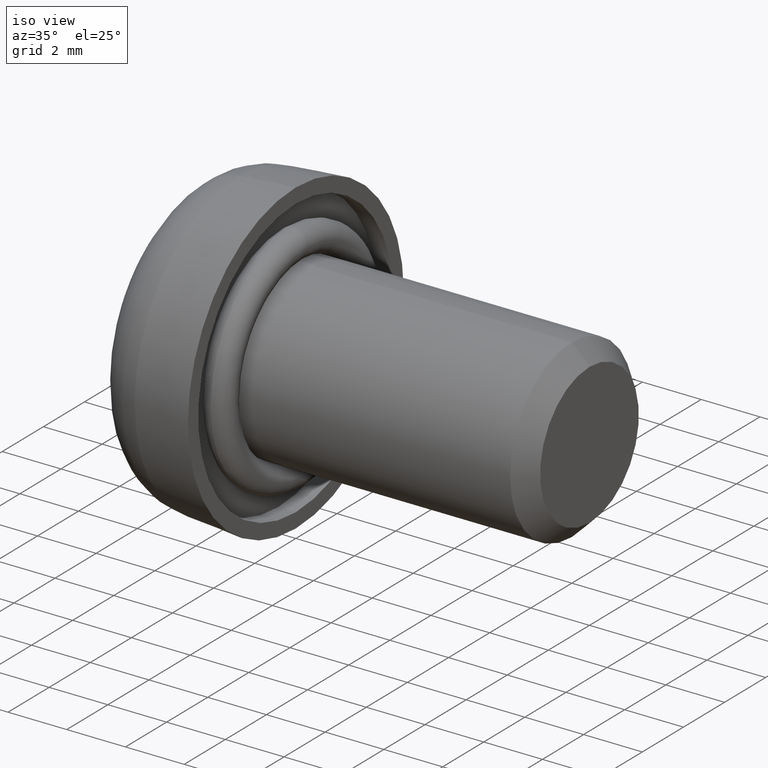
[diagram: clean part render]
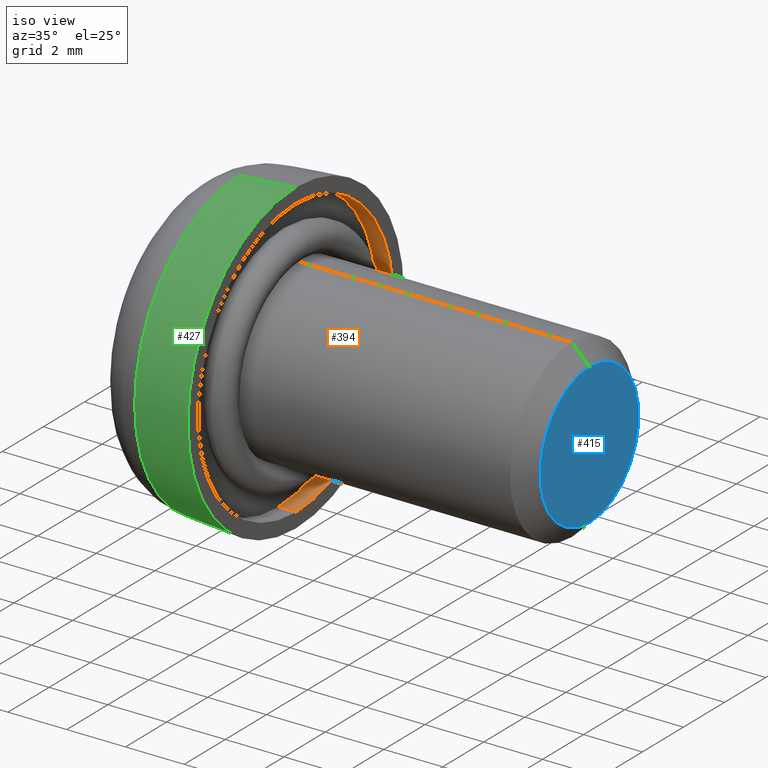
[diagram: same view with three faces highlighted in distinct colors, each labeled with its STEP entity id]
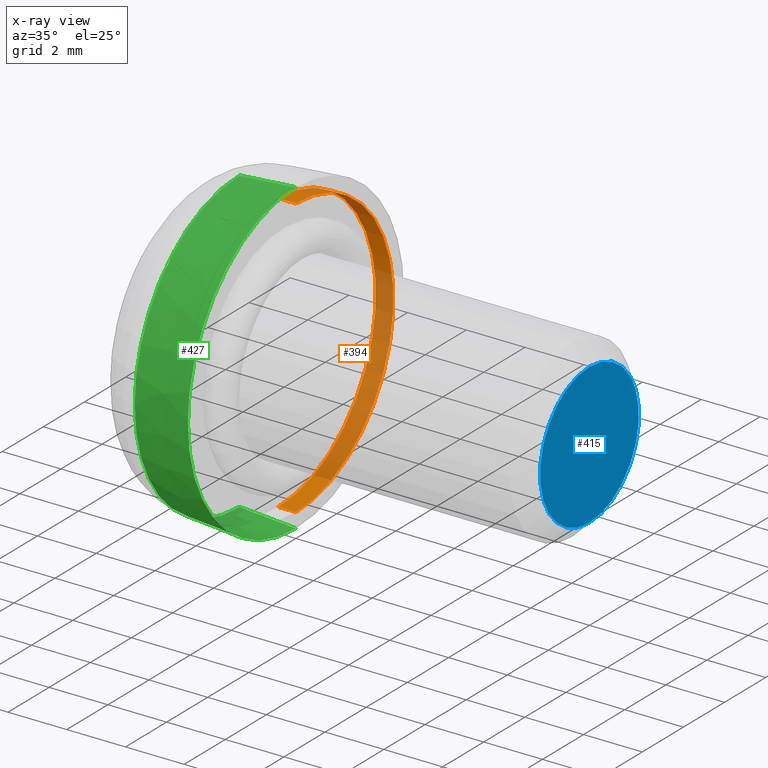
[diagram: x-ray of the same camera — body ghosted, the three highlighted faces saturated]
A machine part, iso view with three faces highlighted in distinct colors.
The next image is the same camera in x-ray (body ghosted, the three faces saturated) — at least one of them is partly hidden behind the body in this view.
Their STEP definitions:

[orange] entity #394 — the highlighted cylindrical surface (partial cylindrical patch) has radius 4.75 mm, axis along (1, 0, 0).
#28 = EDGE_CURVE ( 'NONE', #1060, #33, #765, .T. ) ;
#33 = VERTEX_POINT ( 'NONE', #566 ) ;
#40 = EDGE_CURVE ( 'NONE', #324, #1060, #537, .T. ) ;
#45 = DIRECTION ( 'NONE',  ( 1.000000000000000000, -0.0000000000000000000, -0.0000000000000000000 ) ) ;
#95 = CARTESIAN_POINT ( 'NONE',  ( 0.0000000000000000000, 0.0000000000000000000, -4.750000000000000000 ) ) ;
#104 = DIRECTION ( 'NONE',  ( 1.000000000000000000, -0.0000000000000000000, -0.0000000000000000000 ) ) ;
#121 = LINE ( 'NONE', #605, #1166 ) ;
#124 = ORIENTED_EDGE ( 'NONE', *, *, #715, .F. ) ;
#179 = AXIS2_PLACEMENT_3D ( 'NONE', #821, #104, #191 ) ;
#191 = DIRECTION ( 'NONE',  ( 0.0000000000000000000, 0.0000000000000000000, -1.000000000000000000 ) ) ;
#195 = VECTOR ( 'NONE', #235, 1000.000000000000000 ) ;
#228 = ORIENTED_EDGE ( 'NONE', *, *, #28, .T. ) ;
#235 = DIRECTION ( 'NONE',  ( 1.000000000000000000, -0.0000000000000000000, -0.0000000000000000000 ) ) ;
#281 = AXIS2_PLACEMENT_3D ( 'NONE', #811, #1280, #479 ) ;
#324 = VERTEX_POINT ( 'NONE', #813 ) ;
#394 = ADVANCED_FACE ( 'NONE', ( #850 ), #1071, .F. ) ;
#395 = CARTESIAN_POINT ( 'NONE',  ( -0.5999999999999999800, 5.817072295949927400E-016, 4.750000000000000000 ) ) ;
#450 = VERTEX_POINT ( 'NONE', #395 ) ;
#478 = CARTESIAN_POINT ( 'NONE',  ( -0.5999999999999999800, 0.0000000000000000000, -4.750000000000000000 ) ) ;
#479 = DIRECTION ( 'NONE',  ( 0.0000000000000000000, 0.0000000000000000000, -1.000000000000000000 ) ) ;
#537 = LINE ( 'NONE', #478, #195 ) ;
#566 = CARTESIAN_POINT ( 'NONE',  ( 0.0000000000000000000, 5.817072295949927400E-016, 4.750000000000000000 ) ) ;
#572 = CARTESIAN_POINT ( 'NONE',  ( 0.0000000000000000000, 0.0000000000000000000, 0.0000000000000000000 ) ) ;
#599 = EDGE_CURVE ( 'NONE', #324, #450, #1285, .T. ) ;
#605 = CARTESIAN_POINT ( 'NONE',  ( -0.5999999999999999800, 5.817072295949927400E-016, 4.750000000000000000 ) ) ;
#715 = EDGE_CURVE ( 'NONE', #450, #33, #121, .T. ) ;
#765 = CIRCLE ( 'NONE', #1063, 4.750000000000000000 ) ;
#811 = CARTESIAN_POINT ( 'NONE',  ( -0.5999999999999999800, 0.0000000000000000000, 0.0000000000000000000 ) ) ;
#813 = CARTESIAN_POINT ( 'NONE',  ( -0.5999999999999999800, 0.0000000000000000000, -4.750000000000000000 ) ) ;
#821 = CARTESIAN_POINT ( 'NONE',  ( -0.5999999999999999800, 0.0000000000000000000, 0.0000000000000000000 ) ) ;
#850 = FACE_OUTER_BOUND ( 'NONE', #851, .T. ) ;
#851 = EDGE_LOOP ( 'NONE', ( #124, #919, #987, #228 ) ) ;
#919 = ORIENTED_EDGE ( 'NONE', *, *, #599, .F. ) ;
#987 = ORIENTED_EDGE ( 'NONE', *, *, #40, .T. ) ;
#1060 = VERTEX_POINT ( 'NONE', #95 ) ;
#1063 = AXIS2_PLACEMENT_3D ( 'NONE', #572, #1149, #1242 ) ;
#1071 = CYLINDRICAL_SURFACE ( 'NONE', #179, 4.750000000000000000 ) ;
#1149 = DIRECTION ( 'NONE',  ( 1.000000000000000000, 0.0000000000000000000, 0.0000000000000000000 ) ) ;
#1166 = VECTOR ( 'NONE', #45, 1000.000000000000000 ) ;
#1242 = DIRECTION ( 'NONE',  ( 0.0000000000000000000, 0.0000000000000000000, -1.000000000000000000 ) ) ;
#1280 = DIRECTION ( 'NONE',  ( 1.000000000000000000, 0.0000000000000000000, 0.0000000000000000000 ) ) ;
#1285 = CIRCLE ( 'NONE', #281, 4.750000000000000000 ) ;

[blue] entity #415 — the highlighted planar face has unit normal (1, 0, 0).
#59 = CIRCLE ( 'NONE', #188, 2.400000000000003000 ) ;
#63 = VERTEX_POINT ( 'NONE', #1198 ) ;
#71 = CIRCLE ( 'NONE', #1134, 2.400000000000003000 ) ;
#128 = DIRECTION ( 'NONE',  ( 1.000000000000000000, 0.0000000000000000000, 0.0000000000000000000 ) ) ;
#146 = EDGE_LOOP ( 'NONE', ( #517, #969 ) ) ;
#169 = PLANE ( 'NONE',  #1010 ) ;
#188 = AXIS2_PLACEMENT_3D ( 'NONE', #857, #128, #762 ) ;
#284 = DIRECTION ( 'NONE',  ( 1.000000000000000000, 0.0000000000000000000, 0.0000000000000000000 ) ) ;
#404 = CARTESIAN_POINT ( 'NONE',  ( 10.00000000000000000, 0.0000000000000000000, 0.0000000000000000000 ) ) ;
#415 = ADVANCED_FACE ( 'NONE', ( #1270 ), #169, .T. ) ;
#517 = ORIENTED_EDGE ( 'NONE', *, *, #1238, .T. ) ;
#762 = DIRECTION ( 'NONE',  ( 0.0000000000000000000, 0.0000000000000000000, -1.000000000000000000 ) ) ;
#857 = CARTESIAN_POINT ( 'NONE',  ( 10.00000000000000000, 0.0000000000000000000, 0.0000000000000000000 ) ) ;
#903 = DIRECTION ( 'NONE',  ( 0.0000000000000000000, 0.0000000000000000000, -1.000000000000000000 ) ) ;
#969 = ORIENTED_EDGE ( 'NONE', *, *, #988, .T. ) ;
#988 = EDGE_CURVE ( 'NONE', #63, #1043, #59, .T. ) ;
#1010 = AXIS2_PLACEMENT_3D ( 'NONE', #1085, #1216, #903 ) ;
#1043 = VERTEX_POINT ( 'NONE', #1206 ) ;
#1085 = CARTESIAN_POINT ( 'NONE',  ( 10.00000000000000000, 0.0000000000000000000, 0.0000000000000000000 ) ) ;
#1099 = DIRECTION ( 'NONE',  ( 0.0000000000000000000, 0.0000000000000000000, -1.000000000000000000 ) ) ;
#1134 = AXIS2_PLACEMENT_3D ( 'NONE', #404, #284, #1099 ) ;
#1198 = CARTESIAN_POINT ( 'NONE',  ( 10.00000000000000000, 3.306546357697855200E-016, -2.400000000000003000 ) ) ;
#1206 = CARTESIAN_POINT ( 'NONE',  ( 10.00000000000000000, 0.0000000000000000000, 2.400000000000003000 ) ) ;
#1216 = DIRECTION ( 'NONE',  ( 1.000000000000000000, 0.0000000000000000000, 0.0000000000000000000 ) ) ;
#1238 = EDGE_CURVE ( 'NONE', #1043, #63, #71, .T. ) ;
#1270 = FACE_OUTER_BOUND ( 'NONE', #146, .T. ) ;

[green] entity #427 — the highlighted conical surface has half-angle 4.483 deg.
#53 = DIRECTION ( 'NONE',  ( 0.0000000000000000000, 0.0000000000000000000, -1.000000000000000000 ) ) ;
#131 = VERTEX_POINT ( 'NONE', #385 ) ;
#192 = FACE_OUTER_BOUND ( 'NONE', #662, .T. ) ;
#245 = DIRECTION ( 'NONE',  ( 0.9969410059092820300, 9.571561369948098700E-018, 0.07815772985821049800 ) ) ;
#251 = AXIS2_PLACEMENT_3D ( 'NONE', #1146, #463, #1039 ) ;
#264 = DIRECTION ( 'NONE',  ( 0.0000000000000000000, 0.0000000000000000000, -1.000000000000000000 ) ) ;
#269 = LINE ( 'NONE', #527, #812 ) ;
#319 = CIRCLE ( 'NONE', #251, 5.250000000035788300 ) ;
#351 = VECTOR ( 'NONE', #1095, 1000.000000000000100 ) ;
#352 = VERTEX_POINT ( 'NONE', #1022 ) ;
#385 = CARTESIAN_POINT ( 'NONE',  ( -1.916155469825908900, 6.337411317529574100E-016, 5.099778110586681700 ) ) ;
#427 = ADVANCED_FACE ( 'NONE', ( #192 ), #955, .T. ) ;
#444 = ORIENTED_EDGE ( 'NONE', *, *, #694, .T. ) ;
#463 = DIRECTION ( 'NONE',  ( 1.000000000000000000, -0.0000000000000000000, -0.0000000000000000000 ) ) ;
#470 = VERTEX_POINT ( 'NONE', #904 ) ;
#527 = CARTESIAN_POINT ( 'NONE',  ( 0.0000000000000000000, 6.429395695567433300E-016, 5.250000000035788300 ) ) ;
#545 = EDGE_CURVE ( 'NONE', #131, #470, #269, .T. ) ;
#582 = DIRECTION ( 'NONE',  ( 1.000000000000000000, -0.0000000000000000000, -0.0000000000000000000 ) ) ;
#589 = AXIS2_PLACEMENT_3D ( 'NONE', #615, #582, #53 ) ;
#615 = CARTESIAN_POINT ( 'NONE',  ( -1.916155469825908900, 0.0000000000000000000, 0.0000000000000000000 ) ) ;
#641 = ORIENTED_EDGE ( 'NONE', *, *, #738, .T. ) ;
#662 = EDGE_LOOP ( 'NONE', ( #1006, #444, #641, #884 ) ) ;
#694 = EDGE_CURVE ( 'NONE', #131, #352, #1197, .T. ) ;
#738 = EDGE_CURVE ( 'NONE', #352, #895, #912, .T. ) ;
#812 = VECTOR ( 'NONE', #245, 1000.000000000000100 ) ;
#884 = ORIENTED_EDGE ( 'NONE', *, *, #1008, .F. ) ;
#895 = VERTEX_POINT ( 'NONE', #1255 ) ;
#904 = CARTESIAN_POINT ( 'NONE',  ( 0.0000000000000000000, 6.429395695567433300E-016, 5.250000000035788300 ) ) ;
#912 = LINE ( 'NONE', #1055, #351 ) ;
#955 = CONICAL_SURFACE ( 'NONE', #1209, 5.250000000035788300, 0.07823752217837169600 ) ;
#986 = CARTESIAN_POINT ( 'NONE',  ( 0.0000000000000000000, 0.0000000000000000000, 0.0000000000000000000 ) ) ;
#1006 = ORIENTED_EDGE ( 'NONE', *, *, #545, .F. ) ;
#1008 = EDGE_CURVE ( 'NONE', #470, #895, #319, .T. ) ;
#1022 = CARTESIAN_POINT ( 'NONE',  ( -1.916155469825908900, 0.0000000000000000000, -5.099778110586681700 ) ) ;
#1024 = DIRECTION ( 'NONE',  ( 1.000000000000000000, -0.0000000000000000000, -0.0000000000000000000 ) ) ;
#1039 = DIRECTION ( 'NONE',  ( 0.0000000000000000000, 0.0000000000000000000, -1.000000000000000000 ) ) ;
#1055 = CARTESIAN_POINT ( 'NONE',  ( 0.0000000000000000000, 0.0000000000000000000, -5.250000000035788300 ) ) ;
#1095 = DIRECTION ( 'NONE',  ( 0.9969410059092820300, 0.0000000000000000000, -0.07815772985821049800 ) ) ;
#1146 = CARTESIAN_POINT ( 'NONE',  ( 0.0000000000000000000, 0.0000000000000000000, 0.0000000000000000000 ) ) ;
#1197 = CIRCLE ( 'NONE', #589, 5.099778110586681700 ) ;
#1209 = AXIS2_PLACEMENT_3D ( 'NONE', #986, #1024, #264 ) ;
#1255 = CARTESIAN_POINT ( 'NONE',  ( 0.0000000000000000000, 0.0000000000000000000, -5.250000000035788300 ) ) ;